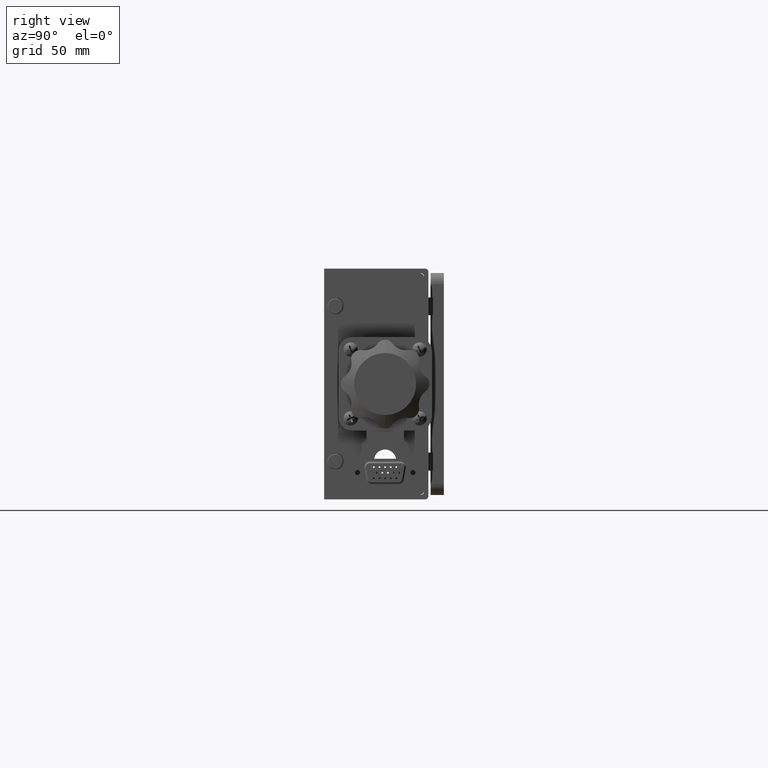
[diagram: clean part render]
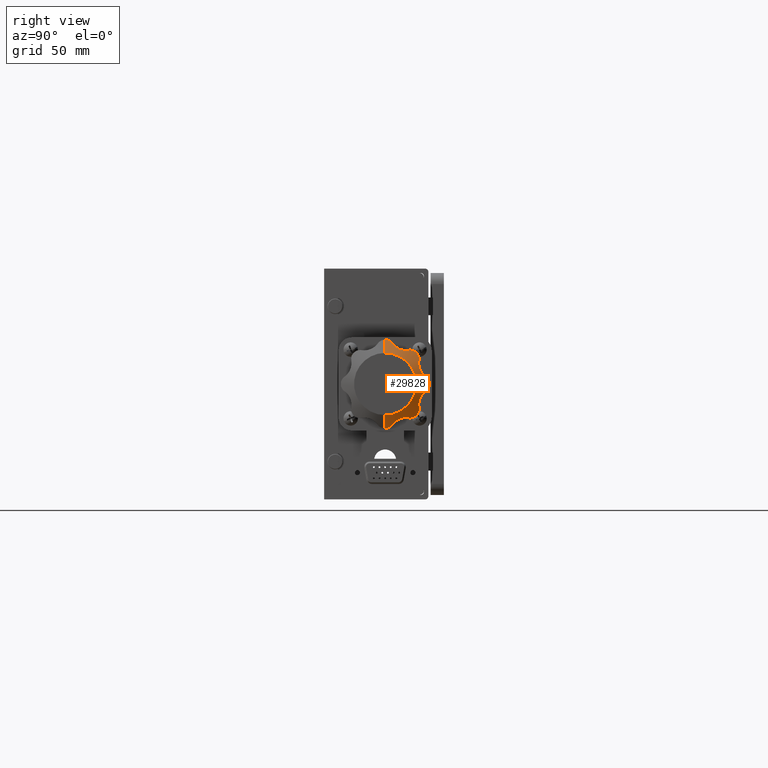
[diagram: same view with one face highlighted and labeled with its STEP entity id]
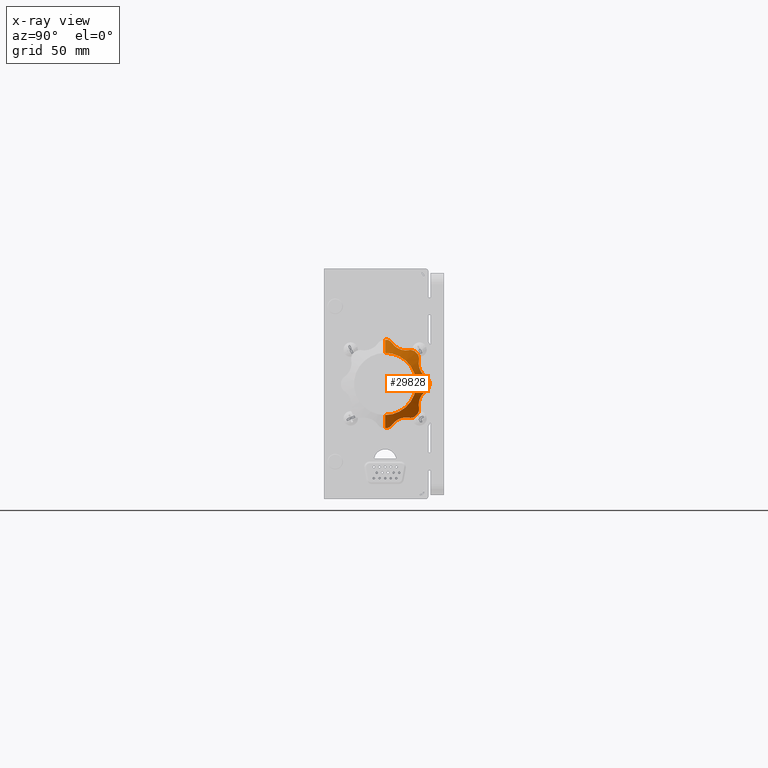
[diagram: x-ray of the same camera — body ghosted, the highlighted face saturated]
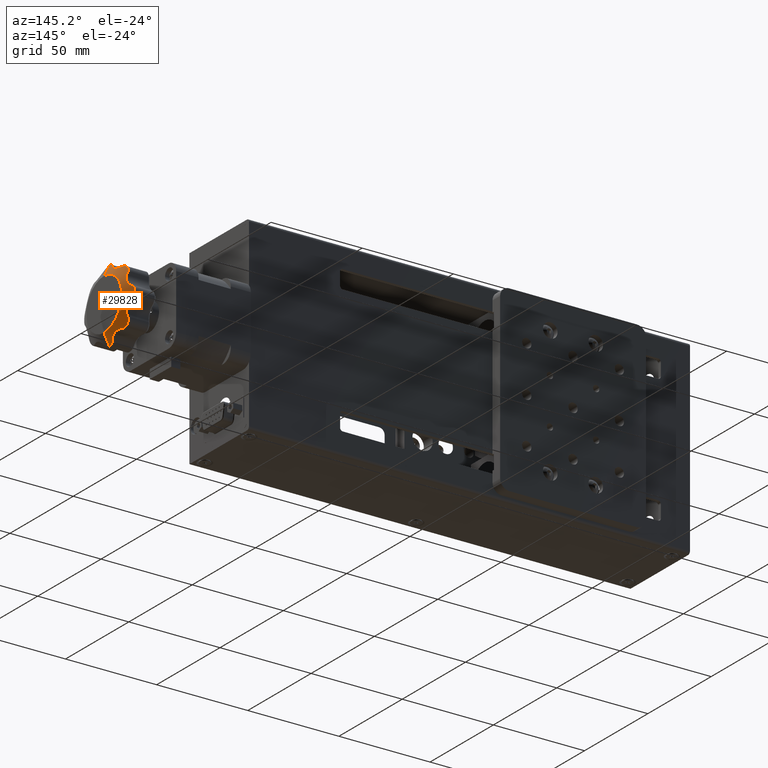
[diagram: same view with one face highlighted and labeled with its STEP entity id]
A machine part, right view. The second image highlights one B-rep face of the part: STEP entity #29828.
The next image is the same camera in x-ray: the body ghosted, the highlighted face saturated — about 0% of this face is hidden behind the body in this view.
A second angle (auxiliary view) of the same face is appended — the face is thin or edge-on in the first view.
In plain terms, the highlighted conical surface has half-angle 63 deg.
Its self-contained STEP definition (entity closure, byte-faithful):
#44 = CARTESIAN_POINT ( 'NONE',  ( 184.0000000000000300, 42.28454923670600600, -13.30199031336001200 ) ) ;
#333 = DIRECTION ( 'NONE',  ( 1.395605930821559500E-015, 0.0000000000000000000, 1.000000000000000000 ) ) ;
#427 = CARTESIAN_POINT ( 'NONE',  ( 185.3225106314465600, 35.71570479898604600, 15.21937809799140100 ) ) ;
#470 = CARTESIAN_POINT ( 'NONE',  ( 184.5055536226904000, 30.49859869842768100, -18.65707282124851600 ) ) ;
#543 = CARTESIAN_POINT ( 'NONE',  ( 184.7844689233043600, 30.96987688738229500, 18.01875098533090400 ) ) ;
#594 = CARTESIAN_POINT ( 'NONE',  ( 184.0000000000000600, 47.36018257591582900, -1.048327468206349300 ) ) ;
#618 = EDGE_CURVE ( 'NONE', #22888, #9734, #21191, .T. ) ;
#804 = CARTESIAN_POINT ( 'NONE',  ( 184.6624876279491900, 30.77481088816406900, 18.29687040269186900 ) ) ;
#836 = VERTEX_POINT ( 'NONE', #11049 ) ;
#1025 = CARTESIAN_POINT ( 'NONE',  ( 184.0000000000000600, 28.54832746820622100, 19.86018257591578300 ) ) ;
#1122 = DIRECTION ( 'NONE',  ( 1.000000000000000000, -8.054943531356615600E-016, -1.390540119859488200E-015 ) ) ;
#1265 = CARTESIAN_POINT ( 'NONE',  ( 184.6624876279491900, 42.75348212235923000, 10.62220015011035400 ) ) ;
#1351 = CARTESIAN_POINT ( 'NONE',  ( 184.0000000000000600, 42.28454923670587100, 13.30199031335995000 ) ) ;
#1363 = B_SPLINE_CURVE_WITH_KNOTS ( 'NONE', 3,
 ( #804, #11934, #14612, #33790, #17368, #1025 ),
 .UNSPECIFIED., .F., .F.,
 ( 4, 2, 4 ),
 ( 2.561101794038174500E-007, 0.001425904833248826000, 0.002851553556318248100 ),
 .UNSPECIFIED. ) ;
#1380 = CARTESIAN_POINT ( 'NONE',  ( 185.1461143652519800, 36.54980657354984400, -15.14191605657909400 ) ) ;
#1697 = CARTESIAN_POINT ( 'NONE',  ( 184.3045522205684400, 46.62800550427296300, 2.503943576036316000 ) ) ;
#1925 = CARTESIAN_POINT ( 'NONE',  ( 185.4712212983298200, 43.34595546684312900, 6.168342961519539500 ) ) ;
#2226 = B_SPLINE_CURVE_WITH_KNOTS ( 'NONE', 3,
 ( #27264, #8128, #13604, #32747 ),
 .UNSPECIFIED., .F., .F.,
 ( 4, 4 ),
 ( 0.007212503309002507900, 0.008555554693879346300 ),
 .UNSPECIFIED. ) ;
#2246 = ORIENTED_EDGE ( 'NONE', *, *, #11591, .T. ) ;
#2482 = B_SPLINE_CURVE_WITH_KNOTS ( 'NONE', 3,
 ( #17110, #3519, #22643, #6262, #25404, #9016, #28116, #11787 ),
 .UNSPECIFIED., .F., .F.,
 ( 4, 2, 2, 4 ),
 ( 1.845941825610156100E-006, 0.001060830556685201600, 0.001590322864114988900, 0.002119815171544775900 ),
 .UNSPECIFIED. ) ;
#2541 = VERTEX_POINT ( 'NONE', #3025 ) ;
#2739 = CARTESIAN_POINT ( 'NONE',  ( 184.6624876279491600, 45.79687040269196500, -3.274810888164077400 ) ) ;
#2764 = CARTESIAN_POINT ( 'NONE',  ( 184.6624876279491600, 45.79687040269196500, -3.274810888164077400 ) ) ;
#2868 = DIRECTION ( 'NONE',  ( -0.4539904997395432500, 4.398779807858269300E-016, 0.8910065241883696800 ) ) ;
#2870 = DIRECTION ( 'NONE',  ( -0.4539904997395457500, 4.006124158357226200E-016, -0.8910065241883684500 ) ) ;
#3010 = ORIENTED_EDGE ( 'NONE', *, *, #618, .T. ) ;
#3025 = CARTESIAN_POINT ( 'NONE',  ( 184.6624876279491900, 45.79687040269199400, 3.274810888164000100 ) ) ;
#3167 = CARTESIAN_POINT ( 'NONE',  ( 185.4519293113119100, 34.68073037974085100, 15.45506756187321400 ) ) ;
#3218 = CARTESIAN_POINT ( 'NONE',  ( 184.6624876279491300, 30.77481088816418300, -18.29687040269190800 ) ) ;
#3425 = EDGE_CURVE ( 'NONE', #24530, #6699, #28095, .T. ) ;
#3519 = CARTESIAN_POINT ( 'NONE',  ( 184.0382766644687800, 40.49283737778644400, 14.96164844871553100 ) ) ;
#3744 = VERTEX_POINT ( 'NONE', #4474 ) ;
#4008 = CARTESIAN_POINT ( 'NONE',  ( 185.2471494995148200, 32.14567900398785800, -16.81206992475332400 ) ) ;
#4211 = CARTESIAN_POINT ( 'NONE',  ( 184.0000000000000000, 28.54832746820622800, -19.86018257591585700 ) ) ;
#4439 = DIRECTION ( 'NONE',  ( 1.000000000000000000, -8.054943531356615600E-016, -1.390540119859488200E-015 ) ) ;
#4447 = CARTESIAN_POINT ( 'NONE',  ( 184.5055536226903700, 46.15707282124859000, 2.998598698427573900 ) ) ;
#4474 = CARTESIAN_POINT ( 'NONE',  ( 184.0000000000000600, 47.36018257591582900, -1.048327468206349300 ) ) ;
#4605 = EDGE_CURVE ( 'NONE', #20353, #836, #19331, .T. ) ;
#4674 = AXIS2_PLACEMENT_3D ( 'NONE', #33081, #16688, #333 ) ;
#4704 = CARTESIAN_POINT ( 'NONE',  ( 185.4667672571537200, 43.07582878604118500, 6.836381252689633900 ) ) ;
#4819 = EDGE_CURVE ( 'NONE', #25034, #18036, #12175, .T. ) ;
#5509 = CARTESIAN_POINT ( 'NONE',  ( 184.4997281778311700, 46.16796470288771600, -3.014534632882311700 ) ) ;
#5554 = CARTESIAN_POINT ( 'NONE',  ( 184.1420244698526000, 42.65864815293881700, -12.44105280815385200 ) ) ;
#5560 = CARTESIAN_POINT ( 'NONE',  ( 184.6624876279491300, 42.75348212235942200, -10.62220015011040500 ) ) ;
#5718 = CARTESIAN_POINT ( 'NONE',  ( 185.3234119966749300, 44.06797905133660000, -4.956625722603873500 ) ) ;
#5721 = CARTESIAN_POINT ( 'NONE',  ( 185.0681554785693900, 36.84121878844461400, -15.14191605657909000 ) ) ;
#5901 = CARTESIAN_POINT ( 'NONE',  ( 184.5024017722141100, 38.58168198380101900, 15.31370849898456800 ) ) ;
#5930 = CARTESIAN_POINT ( 'NONE',  ( 185.4715224530975800, 33.84471398010680300, 15.77245465182236100 ) ) ;
#5943 = VERTEX_POINT ( 'NONE', #5721 ) ;
#5985 = CARTESIAN_POINT ( 'NONE',  ( 184.0000000000000600, 27.50000000000001100, 19.88783151651546500 ) ) ;
#6143 = VERTEX_POINT ( 'NONE', #27547 ) ;
#6262 = CARTESIAN_POINT ( 'NONE',  ( 184.2033968980166800, 39.66590967332485500, 15.22573103771580200 ) ) ;
#6291 = VECTOR ( 'NONE', #2868, 1000.000000000000100 ) ;
#6317 = VECTOR ( 'NONE', #2870, 1000.000000000000000 ) ;
#6474 = EDGE_CURVE ( 'NONE', #2541, #24702, #20686, .T. ) ;
#6514 = CARTESIAN_POINT ( 'NONE',  ( 185.4667672483695900, 43.34782582704134800, -6.179722338723255600 ) ) ;
#6695 = DIRECTION ( 'NONE',  ( 1.000000000000000000, -8.054943531356615600E-016, -1.390540119859488200E-015 ) ) ;
#6699 = VERTEX_POINT ( 'NONE', #5985 ) ;
#6740 = CARTESIAN_POINT ( 'NONE',  ( 185.3959166495826000, 32.87230715703534400, -16.28740649257507700 ) ) ;
#6906 = ORIENTED_EDGE ( 'NONE', *, *, #29714, .T. ) ;
#7173 = CARTESIAN_POINT ( 'NONE',  ( 184.6624876279491900, 45.79687040269199400, 3.274810888164000100 ) ) ;
#7400 = CARTESIAN_POINT ( 'NONE',  ( 184.0000000000000600, 40.80199031336027800, 14.78454923670557600 ) ) ;
#7420 = CARTESIAN_POINT ( 'NONE',  ( 185.4338197077304900, 42.91300267155311600, 7.347392861810321000 ) ) ;
#7455 = VERTEX_POINT ( 'NONE', #20617 ) ;
#7669 = EDGE_CURVE ( 'NONE', #18036, #13879, #22955, .T. ) ;
#8128 = CARTESIAN_POINT ( 'NONE',  ( 184.9520165911938800, 37.27534877471971000, -15.14191605657908800 ) ) ;
#8288 = CARTESIAN_POINT ( 'NONE',  ( 184.3045522164380500, 42.79609788310634100, -11.75498693602063600 ) ) ;
#8377 = CARTESIAN_POINT ( 'NONE',  ( 187.0000000000000600, 27.50000000000000700, 13.99999999999994800 ) ) ;
#8641 = CARTESIAN_POINT ( 'NONE',  ( 184.4321513908462000, 38.81370849898492300, 15.31370849898456900 ) ) ;
#8661 = CARTESIAN_POINT ( 'NONE',  ( 185.4479042270339400, 33.35943980494047200, 16.00844370797656400 ) ) ;
#8918 = CARTESIAN_POINT ( 'NONE',  ( 184.3610722483295200, 39.02552917857948200, -15.33531903817245700 ) ) ;
#9016 = CARTESIAN_POINT ( 'NONE',  ( 184.3331138828684200, 39.15284822802368600, 15.30301001267876500 ) ) ;
#9282 = CARTESIAN_POINT ( 'NONE',  ( 184.7844689233043600, 45.51875098533096800, -3.469876887382255400 ) ) ;
#9353 = EDGE_CURVE ( 'NONE', #30451, #24530, #12766, .T. ) ;
#9412 = CIRCLE ( 'NONE', #4674, 19.88783151651546500 ) ;
#9467 = CARTESIAN_POINT ( 'NONE',  ( 184.6624876279491900, 42.75348212235923000, 10.62220015011035400 ) ) ;
#9492 = CARTESIAN_POINT ( 'NONE',  ( 185.4687201121260800, 33.65668406221554000, -15.85445178932407000 ) ) ;
#9734 = VERTEX_POINT ( 'NONE', #2764 ) ;
#9757 = EDGE_CURVE ( 'NONE', #30451, #6143, #34559, .T. ) ;
#10062 = CARTESIAN_POINT ( 'NONE',  ( 184.6624876279491900, 45.79687040269199400, 3.274810888164000100 ) ) ;
#10174 = CARTESIAN_POINT ( 'NONE',  ( 185.3234121039778300, 42.72019407640755900, 8.210466097388698300 ) ) ;
#10510 = ORIENTED_EDGE ( 'NONE', *, *, #6474, .T. ) ;
#11049 = CARTESIAN_POINT ( 'NONE',  ( 184.0000000000000300, 42.28454923670600600, -13.30199031336001200 ) ) ;
#11052 = CARTESIAN_POINT ( 'NONE',  ( 184.5055536155510900, 42.81287218392950700, -11.07221325748911900 ) ) ;
#11166 = VERTEX_POINT ( 'NONE', #21089 ) ;
#11325 = CARTESIAN_POINT ( 'NONE',  ( 184.9063472167102600, 37.45329744906086200, 15.13607644208951100 ) ) ;
#11370 = CARTESIAN_POINT ( 'NONE',  ( 184.0593759186635300, 28.99970920865673900, -19.71555358250865800 ) ) ;
#11415 = CARTESIAN_POINT ( 'NONE',  ( 184.6624876279491600, 38.12220015011073600, 15.25348212235907600 ) ) ;
#11445 = CARTESIAN_POINT ( 'NONE',  ( 185.3782248456929300, 32.74613468142379000, 16.36615583551901700 ) ) ;
#11591 = EDGE_CURVE ( 'NONE', #24702, #11166, #30638, .T. ) ;
#11685 = CARTESIAN_POINT ( 'NONE',  ( 184.0515186887566900, 40.38588420570759800, -15.02291690299033200 ) ) ;
#11787 = CARTESIAN_POINT ( 'NONE',  ( 184.4321513908462000, 38.81370849898492300, 15.31370849898456900 ) ) ;
#11825 = CARTESIAN_POINT ( 'NONE',  ( 184.0000000000000300, 27.50000000000001100, -3.420913654640839100E-014 ) ) ;
#11934 = CARTESIAN_POINT ( 'NONE',  ( 184.4997281778312900, 30.51453463288228100, 18.66796470288764800 ) ) ;
#12077 = ORIENTED_EDGE ( 'NONE', *, *, #4605, .T. ) ;
#12151 = CARTESIAN_POINT ( 'NONE',  ( 184.6624876279491300, 30.77481088816418300, -18.29687040269190800 ) ) ;
#12175 = B_SPLINE_CURVE_WITH_KNOTS ( 'NONE', 3,
 ( #8641, #5901, #27767, #11415 ),
 .UNSPECIFIED., .F., .F.,
 ( 4, 4 ),
 ( 0.002119815171544775900, 0.002845652650325452900 ),
 .UNSPECIFIED. ) ;
#12261 = CARTESIAN_POINT ( 'NONE',  ( 185.4620551456884200, 34.50150210530451000, -15.51441414229852400 ) ) ;
#12354 = EDGE_CURVE ( 'NONE', #7455, #20353, #14622, .T. ) ;
#12766 = CIRCLE ( 'NONE', #29261, 13.99999999999998400 ) ;
#12914 = CARTESIAN_POINT ( 'NONE',  ( 185.0936132756212900, 42.63437783158882900, 9.262370856465027600 ) ) ;
#13078 = CARTESIAN_POINT ( 'NONE',  ( 185.1076970187259000, 42.60864167487845600, -9.269836976318631000 ) ) ;
#13096 = VERTEX_POINT ( 'NONE', #7400 ) ;
#13361 = DIRECTION ( 'NONE',  ( 1.000000000000000000, -8.054943531356615600E-016, -1.390540119859488200E-015 ) ) ;
#13604 = CARTESIAN_POINT ( 'NONE',  ( 184.8156813861331500, 37.70199227904084400, -15.17972731335604500 ) ) ;
#13764 = CARTESIAN_POINT ( 'NONE',  ( 184.6624876279491300, 42.75348212235942200, -10.62220015011040500 ) ) ;
#13879 = VERTEX_POINT ( 'NONE', #32138 ) ;
#13885 = B_SPLINE_CURVE_WITH_KNOTS ( 'NONE', 3,
 ( #2739, #5509, #14188, #33361, #16935, #594 ),
 .UNSPECIFIED., .F., .F.,
 ( 4, 2, 4 ),
 ( 2.561101793695284400E-007, 0.001425904833248674500, 0.002851553556317979700 ),
 .UNSPECIFIED. ) ;
#14050 = CARTESIAN_POINT ( 'NONE',  ( 185.3782248456929600, 43.86615583551913000, -5.246134681423669100 ) ) ;
#14072 = CARTESIAN_POINT ( 'NONE',  ( 184.1914101639428900, 29.62432713278830200, -19.39726155890813800 ) ) ;
#14138 = CARTESIAN_POINT ( 'NONE',  ( 185.1806272532481600, 31.90749196638294900, 17.01203306021653100 ) ) ;
#14152 = DIRECTION ( 'NONE',  ( -1.000000000000000000, 8.054943531356615600E-016, 1.390540119859488200E-015 ) ) ;
#14188 = CARTESIAN_POINT ( 'NONE',  ( 184.3610719225174000, 46.49348869398902200, -2.693927274609338800 ) ) ;
#14462 = B_SPLINE_CURVE_WITH_KNOTS ( 'NONE', 3,
 ( #24852, #24980, #11370, #30459, #14072, #33239, #16824, #470, #19592, #3218 ),
 .UNSPECIFIED., .F., .F.,
 ( 4, 2, 2, 2, 4 ),
 ( 1.845941825690989300E-006, 0.0007127976259201243600, 0.001423749310014557600, 0.002134700994108991100, 0.002845652678203424600 ),
 .UNSPECIFIED. ) ;
#14511 = DIRECTION ( 'NONE',  ( 1.395605930821559500E-015, 0.0000000000000000000, 1.000000000000000000 ) ) ;
#14582 = ORIENTED_EDGE ( 'NONE', *, *, #18474, .T. ) ;
#14612 = CARTESIAN_POINT ( 'NONE',  ( 184.3610719225174000, 30.19392727460927300, 18.99348869398896900 ) ) ;
#14622 = B_SPLINE_CURVE_WITH_KNOTS ( 'NONE', 3,
 ( #17010, #25292, #8918, #28020, #11685, #30786 ),
 .UNSPECIFIED., .F., .F.,
 ( 4, 2, 4 ),
 ( 2.128886231480407200E-007, 0.001425860909439159800, 0.002851508930255171500 ),
 .UNSPECIFIED. ) ;
#14943 = FACE_OUTER_BOUND ( 'NONE', #16964, .T. ) ;
#14952 = CARTESIAN_POINT ( 'NONE',  ( 184.3610722483295500, 42.83531903817279100, 11.52552917857902800 ) ) ;
#14978 = CARTESIAN_POINT ( 'NONE',  ( 185.3756647833042700, 35.36938308759959400, -15.28342399569085300 ) ) ;
#15176 = CARTESIAN_POINT ( 'NONE',  ( 184.0000000000000300, 47.36018257591582900, 1.048327468206283800 ) ) ;
#15299 = CARTESIAN_POINT ( 'NONE',  ( 184.0593759186635300, 47.21555358250865500, 1.499709208656758300 ) ) ;
#15538 = CARTESIAN_POINT ( 'NONE',  ( 185.3225106727057300, 44.07110591280405700, 4.952345024021234100 ) ) ;
#15659 = CARTESIAN_POINT ( 'NONE',  ( 184.7844690265438300, 42.69475443748550000, 10.28760725010452900 ) ) ;
#16115 = CARTESIAN_POINT ( 'NONE',  ( 184.6624876279491600, 45.79687040269196500, -3.274810888164077400 ) ) ;
#16176 = AXIS2_PLACEMENT_3D ( 'NONE', #29759, #13361, #32508 ) ;
#16232 = EDGE_CURVE ( 'NONE', #13096, #25034, #2482, .T. ) ;
#16402 = CARTESIAN_POINT ( 'NONE',  ( 184.0256971238459000, 42.40344518668399600, -13.09443980228528800 ) ) ;
#16688 = DIRECTION ( 'NONE',  ( 1.000000000000000000, -8.054943531356615600E-016, -1.390540119859488200E-015 ) ) ;
#16694 = CARTESIAN_POINT ( 'NONE',  ( 185.3225106314465300, 42.71937809799159400, -8.215704798985836300 ) ) ;
#16780 = CARTESIAN_POINT ( 'NONE',  ( 185.1076970187259300, 36.76983697631887100, 15.10864167487822700 ) ) ;
#16801 = CARTESIAN_POINT ( 'NONE',  ( 185.0936131362179300, 44.75110680748107900, -4.152135574547528100 ) ) ;
#16824 = CARTESIAN_POINT ( 'NONE',  ( 184.3674099949588500, 30.17840610605224300, -18.97955883692397100 ) ) ;
#16869 = AXIS2_PLACEMENT_3D ( 'NONE', #20782, #4439, #23548 ) ;
#16892 = CARTESIAN_POINT ( 'NONE',  ( 184.8957180678859800, 31.18400874897203700, 17.75390421083988100 ) ) ;
#16935 = CARTESIAN_POINT ( 'NONE',  ( 184.0515187176440000, 47.23450244827623100, -1.511110571355744400 ) ) ;
#16964 = EDGE_LOOP ( 'NONE', ( #22911, #21947, #27056, #24371, #33992, #19197, #17861, #12077, #20822, #3010, #19443, #21086, #20713, #10510, #2246, #14582, #33799, #29692, #28577, #27288, #6906, #24672 ) ) ;
#17010 = CARTESIAN_POINT ( 'NONE',  ( 184.6624876279491300, 38.12220015011087800, -15.25348212235911800 ) ) ;
#17095 = CARTESIAN_POINT ( 'NONE',  ( 187.0000000000000000, 27.50000000000001100, -14.00000000000003700 ) ) ;
#17110 = CARTESIAN_POINT ( 'NONE',  ( 184.0000000000000600, 40.80199031336027800, 14.78454923670557600 ) ) ;
#17368 = CARTESIAN_POINT ( 'NONE',  ( 184.0515187176439700, 29.01111057135559100, 19.73450244827620600 ) ) ;
#17472 = CARTESIAN_POINT ( 'NONE',  ( 187.0000000000000300, 27.50000000000000700, -3.664603343001005000E-014 ) ) ;
#17616 = CARTESIAN_POINT ( 'NONE',  ( 184.8680647907424100, 31.10355895203699800, -17.82815099311099200 ) ) ;
#17710 = CARTESIAN_POINT ( 'NONE',  ( 184.0515186887566600, 42.52291690299073000, 12.88588420570718400 ) ) ;
#17737 = CARTESIAN_POINT ( 'NONE',  ( 185.2153070941807300, 36.25294113229234900, -15.15931565799539400 ) ) ;
#17861 = ORIENTED_EDGE ( 'NONE', *, *, #12354, .T. ) ;
#18036 = VERTEX_POINT ( 'NONE', #26589 ) ;
#18055 = CARTESIAN_POINT ( 'NONE',  ( 184.1914101639429500, 46.89726155890815600, 2.124327132788272500 ) ) ;
#18311 = CARTESIAN_POINT ( 'NONE',  ( 185.4519292569573000, 43.50592656906528800, 5.850839287976088900 ) ) ;
#18474 = EDGE_CURVE ( 'NONE', #11166, #13096, #20901, .T. ) ;
#18560 = EDGE_CURVE ( 'NONE', #6143, #23124, #34178, .T. ) ;
#18793 = EDGE_CURVE ( 'NONE', #5943, #7455, #2226, .T. ) ;
#18832 = CONICAL_SURFACE ( 'NONE', #19304, 13.99999999999998400, 1.099557428756430000 ) ;
#19197 = ORIENTED_EDGE ( 'NONE', *, *, #18793, .T. ) ;
#19304 = AXIS2_PLACEMENT_3D ( 'NONE', #22440, #14152, #33436 ) ;
#19331 = CIRCLE ( 'NONE', #28519, 19.88783151651546500 ) ;
#19443 = ORIENTED_EDGE ( 'NONE', *, *, #33865, .T. ) ;
#19545 = CARTESIAN_POINT ( 'NONE',  ( 185.3777368135646400, 35.36624647211548500, 15.28159960163531400 ) ) ;
#19592 = CARTESIAN_POINT ( 'NONE',  ( 184.5812778788824500, 30.64494457708887200, -18.48203000465135300 ) ) ;
#19667 = CARTESIAN_POINT ( 'NONE',  ( 184.6624876279491900, 30.77481088816406900, 18.29687040269186900 ) ) ;
#20193 = EDGE_CURVE ( 'NONE', #31654, #2541, #32254, .T. ) ;
#20243 = DIRECTION ( 'NONE',  ( 1.982541115402067700E-015, 0.0000000000000000000, 1.000000000000000000 ) ) ;
#20353 = VERTEX_POINT ( 'NONE', #27270 ) ;
#20378 = CARTESIAN_POINT ( 'NONE',  ( 185.0431600133842900, 31.48524406972237700, -17.39760886871379200 ) ) ;
#20447 = EDGE_CURVE ( 'NONE', #23124, #28048, #14462, .T. ) ;
#20491 = CARTESIAN_POINT ( 'NONE',  ( 185.0681554785693900, 36.84121878844461400, -15.14191605657909000 ) ) ;
#20617 = CARTESIAN_POINT ( 'NONE',  ( 184.6624876279491300, 38.12220015011087800, -15.25348212235911800 ) ) ;
#20680 = CARTESIAN_POINT ( 'NONE',  ( 184.0256971240977200, 47.29749433396682400, 1.279159976773908600 ) ) ;
#20686 = B_SPLINE_CURVE_WITH_KNOTS ( 'NONE', 3,
 ( #10062, #26466, #31906, #15538, #34692, #18311, #1925, #21035, #4704, #23794, #7420, #26578, #10174, #29291, #12914, #32030, #15659, #34809 ),
 .UNSPECIFIED., .F., .F.,
 ( 4, 2, 2, 2, 2, 2, 2, 2, 4 ),
 ( 2.564491608125587800E-007, 0.002139081010340364600, 0.003208493290930141700, 0.004277905571519918400, 0.004812611711814810700, 0.005347317852109703800, 0.006416730132699491000, 0.007486142413289276400, 0.008555554693879063500 ),
 .UNSPECIFIED. ) ;
#20713 = ORIENTED_EDGE ( 'NONE', *, *, #20193, .T. ) ;
#20724 = CARTESIAN_POINT ( 'NONE',  ( 184.6624876279491300, 42.75348212235942200, -10.62220015011040500 ) ) ;
#20782 = CARTESIAN_POINT ( 'NONE',  ( 184.0000000000000300, 27.50000000000001100, -3.420913654640839100E-014 ) ) ;
#20789 = CARTESIAN_POINT ( 'NONE',  ( 184.3674099949589000, 46.47955883692402800, 2.678406106052165600 ) ) ;
#20822 = ORIENTED_EDGE ( 'NONE', *, *, #28670, .T. ) ;
#20901 = CIRCLE ( 'NONE', #26754, 19.88783151651546500 ) ;
#20958 = VERTEX_POINT ( 'NONE', #32443 ) ;
#21035 = CARTESIAN_POINT ( 'NONE',  ( 185.4715224592072200, 43.13919999233130700, 6.666419164477139800 ) ) ;
#21086 = ORIENTED_EDGE ( 'NONE', *, *, #26130, .T. ) ;
#21089 = CARTESIAN_POINT ( 'NONE',  ( 184.0000000000000600, 42.28454923670587100, 13.30199031335995000 ) ) ;
#21191 = B_SPLINE_CURVE_WITH_KNOTS ( 'NONE', 3,
 ( #20724, #30326, #13078, #16694, #23834, #29206, #32198, #33565, #6514, #25670, #32438, #14050, #5718, #21428, #16801, #30432, #9282, #16115 ),
 .UNSPECIFIED., .F., .F.,
 ( 4, 2, 2, 2, 2, 2, 2, 2, 4 ),
 ( 2.131679597043728300E-007, 0.002139037759767533500, 0.003208450055671451200, 0.004277862351575366400, 0.004812568499527322000, 0.005347274647479279300, 0.006416686943383191400, 0.007486099239287103600, 0.008555511535191016500 ),
 .UNSPECIFIED. ) ;
#21428 = CARTESIAN_POINT ( 'NONE',  ( 185.1806272532480800, 44.51203306021661600, -4.407491966382841600 ) ) ;
#21911 = CARTESIAN_POINT ( 'NONE',  ( 184.0593759180047200, 42.50145618236293600, -12.88054708598182600 ) ) ;
#21947 = ORIENTED_EDGE ( 'NONE', *, *, #9757, .T. ) ;
#22012 = CARTESIAN_POINT ( 'NONE',  ( 187.0000000000000000, 27.50000000000000700, -14.00000000000002100 ) ) ;
#22311 = CARTESIAN_POINT ( 'NONE',  ( 185.4712213111371300, 34.34310483437170100, 15.56645992878753600 ) ) ;
#22321 = CARTESIAN_POINT ( 'NONE',  ( 187.0000000000000600, 27.50000000000000700, 13.99999999999994800 ) ) ;
#22440 = CARTESIAN_POINT ( 'NONE',  ( 187.0000000000000300, 27.50000000000000700, -3.664603343001005000E-014 ) ) ;
#22643 = CARTESIAN_POINT ( 'NONE',  ( 184.0940759838539400, 40.16974006896805300, 15.09284161671923200 ) ) ;
#22888 = VERTEX_POINT ( 'NONE', #5560 ) ;
#22911 = ORIENTED_EDGE ( 'NONE', *, *, #9353, .F. ) ;
#22955 = B_SPLINE_CURVE_WITH_KNOTS ( 'NONE', 3,
 ( #30415, #11325, #16780, #427, #19545, #3167, #22311, #5930, #25057, #8661, #27788, #11445, #30536, #14138, #33315, #16892, #543, #19667 ),
 .UNSPECIFIED., .F., .F.,
 ( 4, 2, 2, 2, 2, 2, 2, 2, 4 ),
 ( 2.131679597202617600E-007, 0.002139037759767630600, 0.003208450055671585700, 0.004277862351575540700, 0.004812568499527521500, 0.005347274647479502300, 0.006416686943383462900, 0.007486099239287423600, 0.008555511535191377300 ),
 .UNSPECIFIED. ) ;
#23082 = CARTESIAN_POINT ( 'NONE',  ( 184.0000000000000300, 27.50000000000001100, -3.420913654640839100E-014 ) ) ;
#23119 = CARTESIAN_POINT ( 'NONE',  ( 185.3053658163796900, 32.38224356309239500, -16.62623203100520200 ) ) ;
#23124 = VERTEX_POINT ( 'NONE', #4211 ) ;
#23221 = CARTESIAN_POINT ( 'NONE',  ( 184.0000000000000300, 47.36018257591582900, 1.048327468206283800 ) ) ;
#23548 = DIRECTION ( 'NONE',  ( 1.395605930821559500E-015, 0.0000000000000000000, 1.000000000000000000 ) ) ;
#23558 = CARTESIAN_POINT ( 'NONE',  ( 184.5812778788824700, 45.98203000465144900, 3.144944577088764100 ) ) ;
#23794 = CARTESIAN_POINT ( 'NONE',  ( 185.4479042614597400, 42.96292887568894500, 7.176428988280763500 ) ) ;
#23834 = CARTESIAN_POINT ( 'NONE',  ( 185.3777368135646100, 42.78159960163548400, -7.866246472115267200 ) ) ;
#23895 = B_SPLINE_CURVE_WITH_KNOTS ( 'NONE', 3,
 ( #44, #16402, #21911, #5554, #24641, #8288, #27416, #11052, #30146, #13764 ),
 .UNSPECIFIED., .F., .F.,
 ( 4, 2, 2, 2, 4 ),
 ( 1.845941825669782400E-006, 0.0007127976189506464200, 0.001423749296075623200, 0.002134700973200599800, 0.002845652650325576500 ),
 .UNSPECIFIED. ) ;
#24142 = B_SPLINE_CURVE_WITH_KNOTS ( 'NONE', 3,
 ( #12151, #17616, #20378, #4008, #23119, #6740, #25891, #9492, #28621, #12261, #31377, #14978, #34139, #17737, #1380, #20491 ),
 .UNSPECIFIED., .F., .F.,
 ( 4, 2, 2, 2, 2, 2, 2, 4 ),
 ( 2.564491608322572200E-007, 0.001803318164121264000, 0.002704849021601472400, 0.003606379879081680500, 0.004507910736561889100, 0.005409441594042095100, 0.006310972451522301900, 0.007212503309002507900 ),
 .UNSPECIFIED. ) ;
#24371 = ORIENTED_EDGE ( 'NONE', *, *, #20447, .T. ) ;
#24530 = VERTEX_POINT ( 'NONE', #22321 ) ;
#24629 = EDGE_CURVE ( 'NONE', #13879, #20958, #1363, .T. ) ;
#24641 = CARTESIAN_POINT ( 'NONE',  ( 184.1914101614186200, 42.71806130307888300, -12.21380907498691200 ) ) ;
#24672 = ORIENTED_EDGE ( 'NONE', *, *, #3425, .F. ) ;
#24674 = EDGE_CURVE ( 'NONE', #28048, #5943, #24142, .T. ) ;
#24702 = VERTEX_POINT ( 'NONE', #1265 ) ;
#24852 = CARTESIAN_POINT ( 'NONE',  ( 184.0000000000000000, 28.54832746820622800, -19.86018257591585700 ) ) ;
#24888 = CARTESIAN_POINT ( 'NONE',  ( 184.4321513908462000, 38.81370849898492300, 15.31370849898456900 ) ) ;
#24980 = CARTESIAN_POINT ( 'NONE',  ( 184.0256971240976600, 28.77915997677387200, -19.79749433396683500 ) ) ;
#25034 = VERTEX_POINT ( 'NONE', #24888 ) ;
#25057 = CARTESIAN_POINT ( 'NONE',  ( 185.4667672483696500, 33.67972233872343700, 15.84782582704120900 ) ) ;
#25292 = CARTESIAN_POINT ( 'NONE',  ( 184.4997279871319300, 38.56864707441524600, -15.33184240520735700 ) ) ;
#25404 = CARTESIAN_POINT ( 'NONE',  ( 184.2444533669843700, 39.49380450088325700, 15.25921375828624900 ) ) ;
#25670 = CARTESIAN_POINT ( 'NONE',  ( 185.4479042270338300, 43.50844370797670300, -5.859439804940316200 ) ) ;
#25843 = DIRECTION ( 'NONE',  ( 1.395605930821559500E-015, 0.0000000000000000000, 1.000000000000000000 ) ) ;
#25870 = CARTESIAN_POINT ( 'NONE',  ( 184.4997279871319900, 42.83184240520765200, 11.06864707441471700 ) ) ;
#25891 = CARTESIAN_POINT ( 'NONE',  ( 185.4288222905056800, 33.12713173099847100, -16.13298122398214600 ) ) ;
#26130 = EDGE_CURVE ( 'NONE', #3744, #31654, #33244, .T. ) ;
#26466 = CARTESIAN_POINT ( 'NONE',  ( 184.9063469930234500, 45.24086692416703000, 3.664777813653774100 ) ) ;
#26578 = CARTESIAN_POINT ( 'NONE',  ( 185.3782249368033800, 42.78219731838612500, 7.863041706025097000 ) ) ;
#26589 = CARTESIAN_POINT ( 'NONE',  ( 184.6624876279491600, 38.12220015011073600, 15.25348212235907600 ) ) ;
#26754 = AXIS2_PLACEMENT_3D ( 'NONE', #23082, #6695, #25843 ) ;
#27056 = ORIENTED_EDGE ( 'NONE', *, *, #18560, .T. ) ;
#27264 = CARTESIAN_POINT ( 'NONE',  ( 185.0681554785693900, 36.84121878844461400, -15.14191605657909000 ) ) ;
#27270 = CARTESIAN_POINT ( 'NONE',  ( 184.0000000000000300, 40.80199031336041300, -14.78454923670564200 ) ) ;
#27288 = ORIENTED_EDGE ( 'NONE', *, *, #24629, .T. ) ;
#27416 = CARTESIAN_POINT ( 'NONE',  ( 184.3674099899104400, 42.81449387680406500, -11.52665565504213600 ) ) ;
#27547 = CARTESIAN_POINT ( 'NONE',  ( 184.0000000000000000, 27.50000000000001100, -19.88783151651549400 ) ) ;
#27767 = CARTESIAN_POINT ( 'NONE',  ( 184.5795775005562400, 38.34962121827258100, 15.29339902682553300 ) ) ;
#27788 = CARTESIAN_POINT ( 'NONE',  ( 185.4338196571571000, 33.20324688186120500, 16.09403031007262500 ) ) ;
#28020 = CARTESIAN_POINT ( 'NONE',  ( 184.1340889378584200, 39.94651678098873000, -15.17828670694392000 ) ) ;
#28048 = VERTEX_POINT ( 'NONE', #31176 ) ;
#28095 = LINE ( 'NONE', #8377, #6291 ) ;
#28116 = CARTESIAN_POINT ( 'NONE',  ( 184.3809043312554400, 38.98296988118305300, 15.31370849898457300 ) ) ;
#28519 = AXIS2_PLACEMENT_3D ( 'NONE', #11825, #30932, #14511 ) ;
#28577 = ORIENTED_EDGE ( 'NONE', *, *, #7669, .T. ) ;
#28621 = CARTESIAN_POINT ( 'NONE',  ( 185.4757041354543500, 33.93182977399432300, -15.73018105577604000 ) ) ;
#28670 = EDGE_CURVE ( 'NONE', #836, #22888, #23895, .T. ) ;
#29206 = CARTESIAN_POINT ( 'NONE',  ( 185.4519293113118600, 42.95506756187334900, -7.180730379740659000 ) ) ;
#29261 = AXIS2_PLACEMENT_3D ( 'NONE', #17472, #1122, #20243 ) ;
#29291 = CARTESIAN_POINT ( 'NONE',  ( 185.1806272895485400, 42.64589139243841500, 8.912756354989019400 ) ) ;
#29692 = ORIENTED_EDGE ( 'NONE', *, *, #4819, .T. ) ;
#29714 = EDGE_CURVE ( 'NONE', #20958, #6699, #9412, .T. ) ;
#29759 = CARTESIAN_POINT ( 'NONE',  ( 184.0000000000000300, 27.50000000000001100, -3.420913654640839100E-014 ) ) ;
#29828 = ADVANCED_FACE ( 'NONE', ( #14943 ), #18832, .T. ) ;
#30146 = CARTESIAN_POINT ( 'NONE',  ( 184.5812778587599300, 42.79258039298558500, -10.84495716466253200 ) ) ;
#30326 = CARTESIAN_POINT ( 'NONE',  ( 184.9063472167102900, 42.63607644208978100, -9.953297449060558600 ) ) ;
#30415 = CARTESIAN_POINT ( 'NONE',  ( 184.6624876279491600, 38.12220015011073600, 15.25348212235907600 ) ) ;
#30432 = CARTESIAN_POINT ( 'NONE',  ( 184.8957180678859200, 45.25390421083995600, -3.684008748971971500 ) ) ;
#30451 = VERTEX_POINT ( 'NONE', #17095 ) ;
#30459 = CARTESIAN_POINT ( 'NONE',  ( 184.1420244716242100, 29.42163010490071400, -19.51593570404264400 ) ) ;
#30536 = CARTESIAN_POINT ( 'NONE',  ( 185.3234119966749900, 32.45662572260400900, 16.56797905133651100 ) ) ;
#30638 = B_SPLINE_CURVE_WITH_KNOTS ( 'NONE', 3,
 ( #9467, #25870, #14952, #34113, #17710, #1351 ),
 .UNSPECIFIED., .F., .F.,
 ( 4, 2, 4 ),
 ( 2.128886231762659200E-007, 0.001425860909439219400, 0.002851508930255262600 ),
 .UNSPECIFIED. ) ;
#30786 = CARTESIAN_POINT ( 'NONE',  ( 184.0000000000000300, 40.80199031336041300, -14.78454923670564200 ) ) ;
#30932 = DIRECTION ( 'NONE',  ( 1.000000000000000000, -8.054943531356615600E-016, -1.390540119859488200E-015 ) ) ;
#31176 = CARTESIAN_POINT ( 'NONE',  ( 184.6624876279491300, 30.77481088816418300, -18.29687040269190800 ) ) ;
#31377 = CARTESIAN_POINT ( 'NONE',  ( 185.4416332507995300, 34.78906229173467300, -15.42549559016661000 ) ) ;
#31654 = VERTEX_POINT ( 'NONE', #23221 ) ;
#31906 = CARTESIAN_POINT ( 'NONE',  ( 185.1076968662358700, 44.73818802919779400, 4.128657845916024800 ) ) ;
#32030 = CARTESIAN_POINT ( 'NONE',  ( 184.8957182112122300, 42.65889358946788000, 9.948918039722304500 ) ) ;
#32138 = CARTESIAN_POINT ( 'NONE',  ( 184.6624876279491900, 30.77481088816406900, 18.29687040269186900 ) ) ;
#32198 = CARTESIAN_POINT ( 'NONE',  ( 185.4712213111371000, 43.06645992878767300, -6.843104834371511700 ) ) ;
#32254 = B_SPLINE_CURVE_WITH_KNOTS ( 'NONE', 3,
 ( #15176, #20680, #15299, #34450, #18055, #1697, #20789, #4447, #23558, #7173 ),
 .UNSPECIFIED., .F., .F.,
 ( 4, 2, 2, 2, 4 ),
 ( 1.845941825699991400E-006, 0.0007127976259200783900, 0.001423749310014456800, 0.002134700994108835000, 0.002845652678203213400 ),
 .UNSPECIFIED. ) ;
#32438 = CARTESIAN_POINT ( 'NONE',  ( 185.4338196571571000, 43.59403031007274600, -5.703246881861059800 ) ) ;
#32443 = CARTESIAN_POINT ( 'NONE',  ( 184.0000000000000600, 28.54832746820622100, 19.86018257591578300 ) ) ;
#32508 = DIRECTION ( 'NONE',  ( 1.395605930821559500E-015, 0.0000000000000000000, 1.000000000000000000 ) ) ;
#32747 = CARTESIAN_POINT ( 'NONE',  ( 184.6624876279491300, 38.12220015011087800, -15.25348212235911800 ) ) ;
#33081 = CARTESIAN_POINT ( 'NONE',  ( 184.0000000000000300, 27.50000000000001100, -3.420913654640839100E-014 ) ) ;
#33239 = CARTESIAN_POINT ( 'NONE',  ( 184.3045522205685000, 30.00394357603637700, -19.12800550427292400 ) ) ;
#33244 = CIRCLE ( 'NONE', #16176, 19.88783151651546500 ) ;
#33315 = CARTESIAN_POINT ( 'NONE',  ( 185.0936131362179300, 31.65213557454761400, 17.25110680748100100 ) ) ;
#33361 = CARTESIAN_POINT ( 'NONE',  ( 184.1340889782052000, 47.03368578314134400, -1.931653050614664300 ) ) ;
#33436 = DIRECTION ( 'NONE',  ( 1.982541115402067700E-015, 0.0000000000000000000, 1.000000000000000000 ) ) ;
#33565 = CARTESIAN_POINT ( 'NONE',  ( 185.4715224530974400, 43.27245465182249300, -6.344713980106637200 ) ) ;
#33790 = CARTESIAN_POINT ( 'NONE',  ( 184.1340889782052000, 29.43165305061451800, 19.53368578314131200 ) ) ;
#33799 = ORIENTED_EDGE ( 'NONE', *, *, #16232, .T. ) ;
#33865 = EDGE_CURVE ( 'NONE', #9734, #3744, #13885, .T. ) ;
#33992 = ORIENTED_EDGE ( 'NONE', *, *, #24674, .T. ) ;
#34113 = CARTESIAN_POINT ( 'NONE',  ( 184.1340889378584200, 42.67828670694429100, 12.44651678098829700 ) ) ;
#34139 = CARTESIAN_POINT ( 'NONE',  ( 185.3301160192735300, 35.66214534001819200, -15.23027921912767200 ) ) ;
#34178 = CIRCLE ( 'NONE', #16869, 19.88783151651546500 ) ;
#34450 = CARTESIAN_POINT ( 'NONE',  ( 184.1420244716243000, 47.01593570404264700, 1.921630104900708500 ) ) ;
#34559 = LINE ( 'NONE', #22012, #6317 ) ;
#34692 = CARTESIAN_POINT ( 'NONE',  ( 185.3777367299795700, 43.86799925480003300, 5.243445996837274400 ) ) ;
#34809 = CARTESIAN_POINT ( 'NONE',  ( 184.6624876279491900, 42.75348212235923000, 10.62220015011035400 ) ) ;